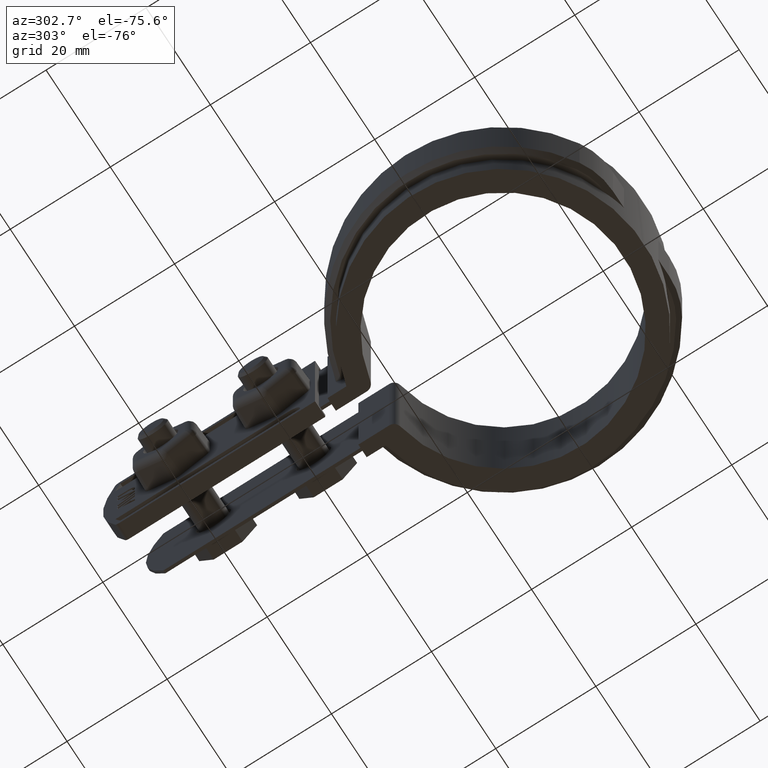
[diagram: clean part render]
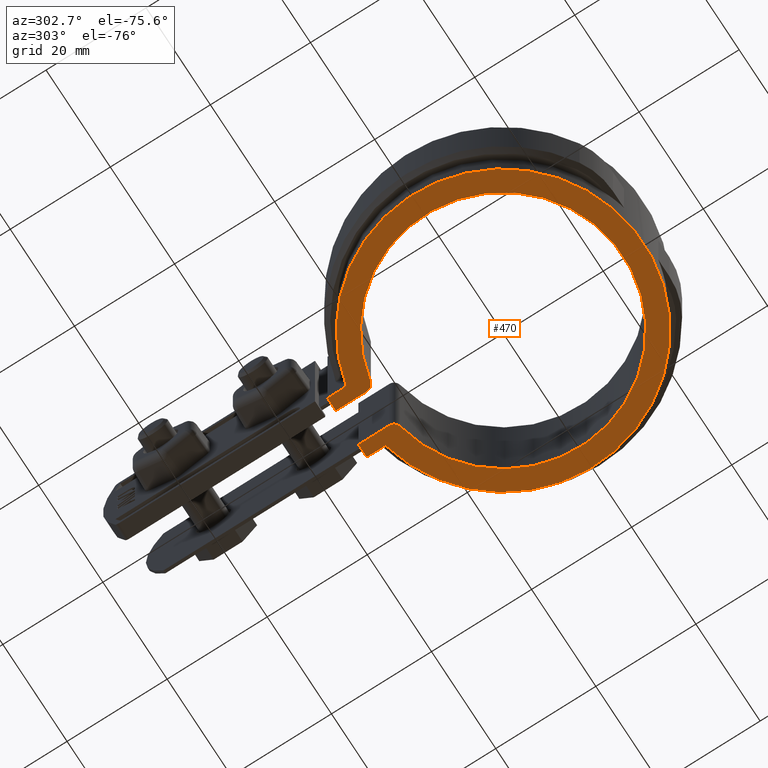
[diagram: same view with one face highlighted and labeled with its STEP entity id]
A machine part, auxiliary view. The second image highlights one B-rep face of the part: STEP entity #470.
In plain terms, the highlighted planar face has unit normal (0, 0, -1).
Its self-contained STEP definition (entity closure, byte-faithful):
#470 = ADVANCED_FACE( '', ( #951 ), #952, .T. );
#951 = FACE_OUTER_BOUND( '', #2269, .T. );
#952 = PLANE( '', #2270 );
#2269 = EDGE_LOOP( '', ( #5274, #5275, #5276, #5277, #5278, #5279, #5280, #5281, #5282, #5283 ) );
#2270 = AXIS2_PLACEMENT_3D( '', #5284, #5285, #5286 );
#5274 = ORIENTED_EDGE( '', *, *, #7750, .F. );
#5275 = ORIENTED_EDGE( '', *, *, #7751, .T. );
#5276 = ORIENTED_EDGE( '', *, *, #7752, .T. );
#5277 = ORIENTED_EDGE( '', *, *, #7753, .T. );
#5278 = ORIENTED_EDGE( '', *, *, #7656, .F. );
#5279 = ORIENTED_EDGE( '', *, *, #7754, .F. );
#5280 = ORIENTED_EDGE( '', *, *, #7755, .F. );
#5281 = ORIENTED_EDGE( '', *, *, #7697, .F. );
#5282 = ORIENTED_EDGE( '', *, *, #7756, .F. );
#5283 = ORIENTED_EDGE( '', *, *, #7538, .F. );
#5284 = CARTESIAN_POINT( '', ( -6.50000000000000, 26.7207784317748, -26.5000000000000 ) );
#5285 = DIRECTION( '', ( 0.000000000000000, 0.000000000000000, -1.00000000000000 ) );
#5286 = DIRECTION( '', ( 0.000000000000000, -1.00000000000000, 0.000000000000000 ) );
#7538 = EDGE_CURVE( '', #8623, #8625, #8626, .T. );
#7656 = EDGE_CURVE( '', #8841, #8842, #8843, .T. );
#7697 = EDGE_CURVE( '', #8904, #8906, #8907, .F. );
#7750 = EDGE_CURVE( '', #8983, #8623, #8985, .T. );
#7751 = EDGE_CURVE( '', #8983, #8986, #8987, .T. );
#7752 = EDGE_CURVE( '', #8986, #8988, #8989, .F. );
#7753 = EDGE_CURVE( '', #8988, #8842, #8990, .T. );
#7754 = EDGE_CURVE( '', #8991, #8841, #8992, .T. );
#7755 = EDGE_CURVE( '', #8906, #8991, #8993, .T. );
#7756 = EDGE_CURVE( '', #8625, #8904, #8994, .T. );
#8623 = VERTEX_POINT( '', #11102 );
#8625 = VERTEX_POINT( '', #11105 );
#8626 = LINE( '', #11106, #11107 );
#8841 = VERTEX_POINT( '', #11967 );
#8842 = VERTEX_POINT( '', #11968 );
#8843 = LINE( '', #11969, #11970 );
#8904 = VERTEX_POINT( '', #12151 );
#8906 = VERTEX_POINT( '', #12154 );
#8907 = CIRCLE( '', #12155, 28.0950000000000 );
#8983 = VERTEX_POINT( '', #12379 );
#8985 = LINE( '', #12382, #12383 );
#8986 = VERTEX_POINT( '', #12384 );
#8987 = CIRCLE( '', #12385, 1.50000000000000 );
#8988 = VERTEX_POINT( '', #12386 );
#8989 = CIRCLE( '', #12387, 24.0000000000000 );
#8990 = CIRCLE( '', #12388, 1.50000000000000 );
#8991 = VERTEX_POINT( '', #12389 );
#8992 = LINE( '', #12390, #12391 );
#8993 = LINE( '', #12392, #12393 );
#8994 = LINE( '', #12394, #12395 );
#11102 = CARTESIAN_POINT( '', ( -3.49999999999999, 31.1900000000000, -26.5000000000000 ) );
#11105 = CARTESIAN_POINT( '', ( -6.10000000000000, 31.1900000000000, -26.5000000000000 ) );
#11106 = CARTESIAN_POINT( '', ( -3.50000000000000, 31.1900000000000, -26.5000000000000 ) );
#11107 = VECTOR( '', #14022, 1000.00000000000 );
#11967 = CARTESIAN_POINT( '', ( 3.50000000000000, 31.1900000000000, -26.5000000000000 ) );
#11968 = CARTESIAN_POINT( '', ( 3.50000000000000, 25.0049995001000, -26.5000000000000 ) );
#11969 = CARTESIAN_POINT( '', ( 3.50000000000000, 31.1900000000000, -26.5000000000000 ) );
#11970 = VECTOR( '', #14141, 1000.00000000000 );
#12151 = CARTESIAN_POINT( '', ( -6.10000000000000, 27.4247885133140, -26.5000000000000 ) );
#12154 = CARTESIAN_POINT( '', ( 6.10000000000001, 27.4247885133140, -26.5000000000000 ) );
#12155 = AXIS2_PLACEMENT_3D( '', #14179, #14180, #14181 );
#12379 = CARTESIAN_POINT( '', ( -3.49999999999999, 25.0049995001000, -26.5000000000000 ) );
#12382 = CARTESIAN_POINT( '', ( -3.49999999999999, 23.7383660979436, -26.5000000000000 ) );
#12383 = VECTOR( '', #14250, 1000.00000000000 );
#12384 = CARTESIAN_POINT( '', ( -4.70588235294117, 23.5341171765647, -26.5000000000000 ) );
#12385 = AXIS2_PLACEMENT_3D( '', #14251, #14252, #14253 );
#12386 = CARTESIAN_POINT( '', ( 4.70588235294118, 23.5341171765647, -26.5000000000000 ) );
#12387 = AXIS2_PLACEMENT_3D( '', #14254, #14255, #14256 );
#12388 = AXIS2_PLACEMENT_3D( '', #14257, #14258, #14259 );
#12389 = CARTESIAN_POINT( '', ( 6.10000000000001, 31.1900000000000, -26.5000000000000 ) );
#12390 = CARTESIAN_POINT( '', ( 4.50000000000001, 31.1900000000000, -26.5000000000000 ) );
#12391 = VECTOR( '', #14260, 1000.00000000000 );
#12392 = CARTESIAN_POINT( '', ( 6.10000000000001, 27.4247885133140, -26.5000000000000 ) );
#12393 = VECTOR( '', #14261, 1000.00000000000 );
#12394 = CARTESIAN_POINT( '', ( -6.10000000000000, 31.1900000000000, -26.5000000000000 ) );
#12395 = VECTOR( '', #14262, 1000.00000000000 );
#14022 = DIRECTION( '', ( -1.00000000000000, 0.000000000000000, 0.000000000000000 ) );
#14141 = DIRECTION( '', ( -6.07153216591882E-017, -1.00000000000000, 0.000000000000000 ) );
#14179 = CARTESIAN_POINT( '', ( 0.000000000000000, 0.000000000000000, -26.5000000000000 ) );
#14180 = DIRECTION( '', ( 0.000000000000000, 0.000000000000000, -1.00000000000000 ) );
#14181 = DIRECTION( '', ( -1.00000000000000, 0.000000000000000, 0.000000000000000 ) );
#14250 = DIRECTION( '', ( 6.07153216591882E-017, 1.00000000000000, 0.000000000000000 ) );
#14251 = CARTESIAN_POINT( '', ( -4.99999999999999, 25.0049995001000, -26.5000000000000 ) );
#14252 = DIRECTION( '', ( 0.000000000000000, 0.000000000000000, -1.00000000000000 ) );
#14253 = DIRECTION( '', ( -1.00000000000000, 0.000000000000000, 0.000000000000000 ) );
#14254 = CARTESIAN_POINT( '', ( 6.93889390390723E-015, 0.000000000000000, -26.5000000000000 ) );
#14255 = DIRECTION( '', ( 0.000000000000000, 0.000000000000000, -1.00000000000000 ) );
#14256 = DIRECTION( '', ( -1.00000000000000, 0.000000000000000, 0.000000000000000 ) );
#14257 = CARTESIAN_POINT( '', ( 5.00000000000000, 25.0049995001000, -26.5000000000000 ) );
#14258 = DIRECTION( '', ( 0.000000000000000, 0.000000000000000, -1.00000000000000 ) );
#14259 = DIRECTION( '', ( -1.00000000000000, 0.000000000000000, 0.000000000000000 ) );
#14260 = DIRECTION( '', ( -1.00000000000000, 0.000000000000000, 0.000000000000000 ) );
#14261 = DIRECTION( '', ( 6.07153216591882E-017, 1.00000000000000, 0.000000000000000 ) );
#14262 = DIRECTION( '', ( -6.07153216591882E-017, -1.00000000000000, 0.000000000000000 ) );